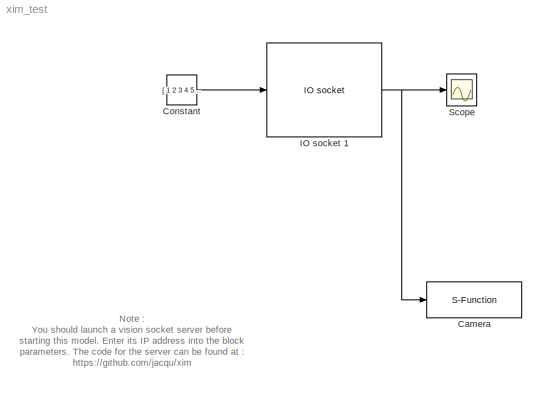
MODEL xim_test
KIND model
CONFIG InitFcn = xim_init;
BLOCK [S-Function] Camera
  DeleteFcn = if ~isempty(findobj('type','figure','name','dblpend1 Animation'));close('dblpend1 Animation'); end;
  EnableBusSupport = off
  FunctionName = camera_anim
  Ports = [1]
  SFcnIsStateOwnerBlock = off
  SFunctionDeploymentMode = off
  SID = 22
BLOCK [Constant] Constant
  SID = 15
  SampleTime = 0.01
  Value = [ 1 2 3 4 5 6 7 8 9 10 ]
BLOCK [Reference] IO socket 1  REF=rpi_blkst/IO socket  (lib defined in mdl_5f9edbe601a8, slx_830431f926a7)
  Ports = [1, 1]
  SID = 3
  SourceBlock = rpi_blkst/IO socket
  SourceProductName = RPI Blockset
  SourceType = IO socket
  rpi_mask_Ts = 0.01
  rpi_mask_ip1 = 130
  rpi_mask_ip2 = 79
  rpi_mask_ip3 = 72
  rpi_mask_ip4 = 209
BLOCK [Scope] Scope
  Floating = off
  NumInputPorts = 1
  Ports = [1]
  SID = 2
  ScopeSpecificationString = Simulink.scopes.TimeScopeBlockCfg('CurrentConfiguration', extmgr.ConfigurationSet(extmgr.Configuration('Core','General UI',true),extmgr.Configuration('Core','Source UI',true),extmgr.Configuration('Sources','WiredSimulink',true,'DataLoggingSaveFormat','StructureWithTime','DataLoggingLimitDataPoints',true,'DataLoggingDecimation','1','DataLoggingDecimateData',true),extmgr.Configuration('Visuals','Tim...<+1610ch>
ANNOTATION (root): Note :\nYou should launch a vision socket server before\nstarting this model. Enter its IP address into the block\nparameters. The code for the server can be found at :\nhttps://github.com/jacqu/xim
LINE Constant:1 -> IO socket 1:1
NET IO socket 1:1 -> Camera:1, Scope:1
note: NET lines group one-source signal fan-out (src -> all destinations, sorted); 1:1 wires keep LINE
